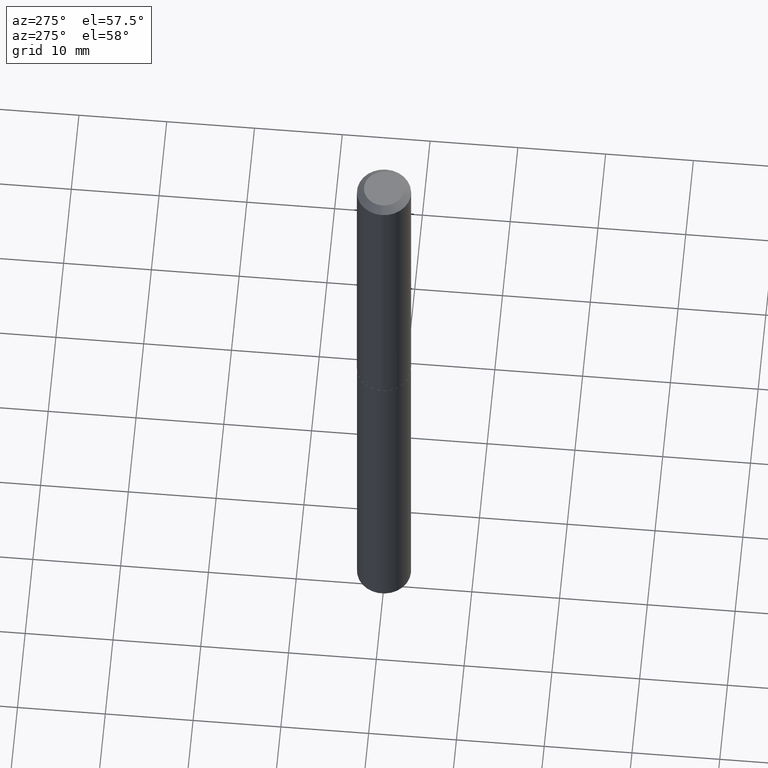
[diagram: clean part render]
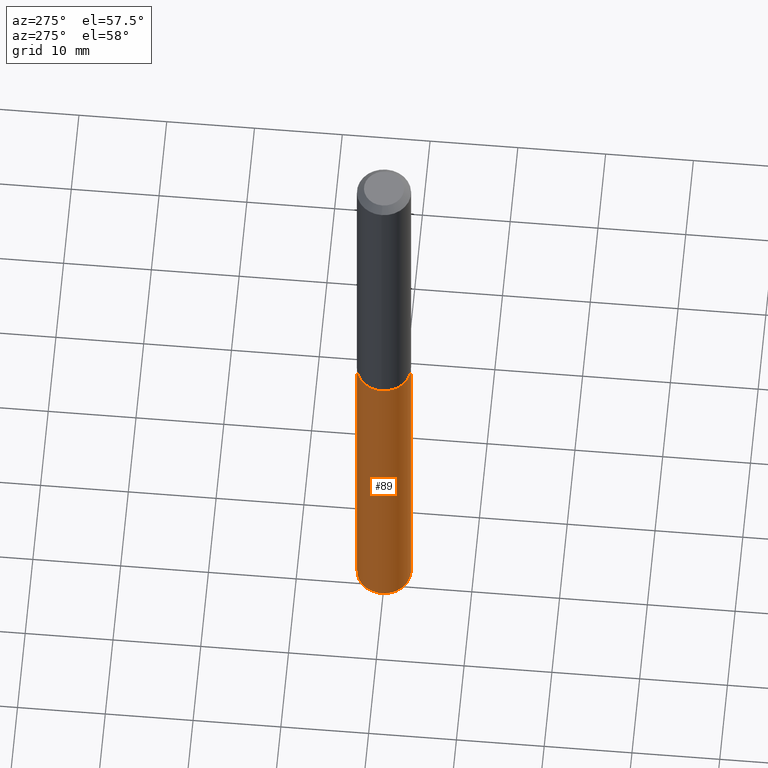
[diagram: same view with one face highlighted and labeled with its STEP entity id]
A machine part, auxiliary view. The second image highlights one B-rep face of the part: STEP entity #89.
In plain terms, the highlighted cylindrical surface (edge-blend (fillet) strip) has radius 3.0734 mm, axis along (-0, 0, 1).
Its self-contained STEP definition (entity closure, byte-faithful):
#15 = EDGE_CURVE ( 'NONE', #282, #213, #17, .T. ) ;
#17 = LINE ( 'NONE', #342, #279 ) ;
#20 = DIRECTION ( 'NONE',  ( -6.982962677686264344E-15, -1.000000000000000000, 4.515451229197129137E-15 ) ) ;
#21 = ORIENTED_EDGE ( 'NONE', *, *, #15, .F. ) ;
#24 = ORIENTED_EDGE ( 'NONE', *, *, #58, .T. ) ;
#33 = EDGE_CURVE ( 'NONE', #292, #118, #84, .T. ) ;
#38 = CARTESIAN_POINT ( 'NONE',  ( 3.648639458828223995E-29, -5.209290157553973331E-15, -1.491999999999999993 ) ) ;
#39 = AXIS2_PLACEMENT_3D ( 'NONE', #38, #46, #77 ) ;
#45 = CIRCLE ( 'NONE', #103, 0.1210000000000000103 ) ;
#46 = DIRECTION ( 'NONE',  ( -2.445363520308743340E-29, 3.491632114210640844E-15, 1.000000000000000000 ) ) ;
#58 = EDGE_CURVE ( 'NONE', #282, #292, #300, .T. ) ;
#63 = FACE_OUTER_BOUND ( 'NONE', #133, .T. ) ;
#69 = CARTESIAN_POINT ( 'NONE',  ( 3.648639458828223995E-29, -5.209290157553973331E-15, -1.491999999999999993 ) ) ;
#77 = DIRECTION ( 'NONE',  ( -6.982962677686264344E-15, -1.000000000000000000, 4.515451229197129137E-15 ) ) ;
#84 = LINE ( 'NONE', #231, #256 ) ;
#88 = ORIENTED_EDGE ( 'NONE', *, *, #33, .T. ) ;
#89 = ADVANCED_FACE ( 'NONE', ( #63 ), #167, .T. ) ;
#103 = AXIS2_PLACEMENT_3D ( 'NONE', #69, #272, #276 ) ;
#118 = VERTEX_POINT ( 'NONE', #236 ) ;
#133 = EDGE_LOOP ( 'NONE', ( #21, #24, #88, #171 ) ) ;
#137 = AXIS2_PLACEMENT_3D ( 'NONE', #220, #227, #20 ) ;
#147 = DIRECTION ( 'NONE',  ( -2.445363520308743060E-29, 3.491632114210641238E-15, 1.000000000000000000 ) ) ;
#167 = CYLINDRICAL_SURFACE ( 'NONE', #39, 0.1210000000000000103 ) ;
#171 = ORIENTED_EDGE ( 'NONE', *, *, #364, .F. ) ;
#179 = CARTESIAN_POINT ( 'NONE',  ( 8.597567102697990011E-16, 0.1209999999999947923, -1.492000000000000659 ) ) ;
#187 = CARTESIAN_POINT ( 'NONE',  ( -8.449384839999605928E-16, -0.1210000000000111126, -3.177295865097664596 ) ) ;
#206 = DIRECTION ( 'NONE',  ( -2.445363520308743060E-29, 3.491632114210641238E-15, 1.000000000000000000 ) ) ;
#213 = VERTEX_POINT ( 'NONE', #179 ) ;
#220 = CARTESIAN_POINT ( 'NONE',  ( 7.769800488265220170E-29, -1.109372332207538747E-14, -3.177295865097665484 ) ) ;
#227 = DIRECTION ( 'NONE',  ( -2.445363520308743340E-29, 3.491632114210640844E-15, 1.000000000000000000 ) ) ;
#231 = CARTESIAN_POINT ( 'NONE',  ( -8.449384840000016136E-16, -0.1210000000000052145, -1.491999999999999549 ) ) ;
#236 = CARTESIAN_POINT ( 'NONE',  ( -8.449384840000016136E-16, -0.1210000000000052145, -1.491999999999999549 ) ) ;
#256 = VECTOR ( 'NONE', #206, 39.37007874015748143 ) ;
#272 = DIRECTION ( 'NONE',  ( -2.445363520308743340E-29, 3.491632114210640844E-15, 1.000000000000000000 ) ) ;
#276 = DIRECTION ( 'NONE',  ( -6.982962677686264344E-15, -1.000000000000000000, 4.515451229197129137E-15 ) ) ;
#278 = CARTESIAN_POINT ( 'NONE',  ( 8.597567102697989025E-16, 0.1209999999999889081, -3.177295865097665928 ) ) ;
#279 = VECTOR ( 'NONE', #147, 39.37007874015748143 ) ;
#282 = VERTEX_POINT ( 'NONE', #278 ) ;
#292 = VERTEX_POINT ( 'NONE', #187 ) ;
#300 = CIRCLE ( 'NONE', #137, 0.1210000000000000103 ) ;
#342 = CARTESIAN_POINT ( 'NONE',  ( 8.597567102697576845E-16, 0.1209999999999947923, -1.492000000000000659 ) ) ;
#364 = EDGE_CURVE ( 'NONE', #213, #118, #45, .T. ) ;